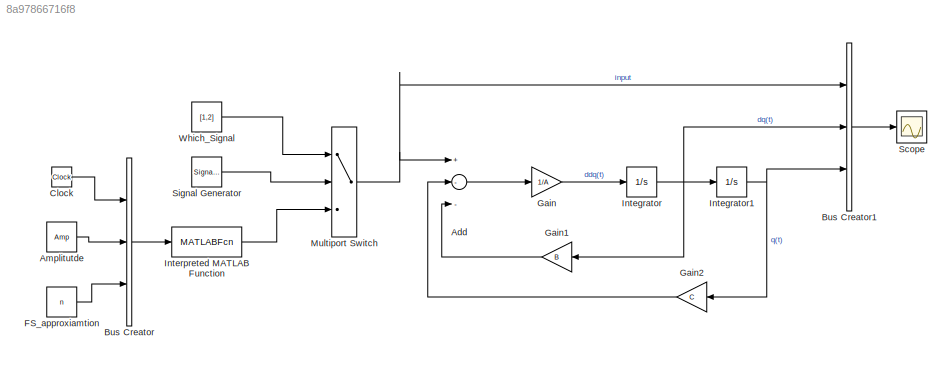
MODEL slx_8a97866716f8
KIND model
CONFIG AbsTol = auto
CONFIG EnableMultiTasking = off
CONFIG FixedStep = auto
CONFIG InitFcn = A=2;\n B=4;\n C=200;\nn=25; \nAmp=10
CONFIG MaxStep = auto
CONFIG MinStep = auto
CONFIG RelTol = 1e-3
CONFIG SampleTimeConstraint = Unconstrained
CONFIG Solver = VariableStepAuto
CONFIG SolverName = VariableStepAuto
CONFIG StartTime = 0.0
CONFIG StopTime = 10.0
BLOCK [Sum] Add
  InputSameDT = off
  Inputs = +--
  OutDataTypeStr = Inherit: Inherit via internal rule
  Ports = [3, 1]
  SaturateOnIntegerOverflow = off
BLOCK [Constant] Amplitutde
  Value = Amp
BLOCK [BusCreator] Bus Creator
  DisplayOption = bar
  InheritFromInputs = on
  Inputs = 3
  Ports = [3, 1]
BLOCK [BusCreator] Bus Creator1
  DisplayOption = bar
  InheritFromInputs = on
  Inputs = 3
  Ports = [3, 1]
BLOCK [Clock] Clock
BLOCK [Constant] FS_approxiamtion
  Value = n
BLOCK [Gain] Gain
  Gain = 1/A
  OutDataTypeStr = Inherit: Inherit via internal rule
  ParamDataTypeStr = Inherit: Inherit via internal rule
  SaturateOnIntegerOverflow = off
BLOCK [Gain] Gain1
  Gain = B
  OutDataTypeStr = Inherit: Inherit via internal rule
  ParamDataTypeStr = Inherit: Inherit via internal rule
  SaturateOnIntegerOverflow = off
BLOCK [Gain] Gain2
  Gain = C
  OutDataTypeStr = Inherit: Inherit via internal rule
  ParamDataTypeStr = Inherit: Inherit via internal rule
  SaturateOnIntegerOverflow = off
BLOCK [Integrator] Integrator
  Ports = [1, 1]
BLOCK [Integrator] Integrator1
  Ports = [1, 1]
BLOCK [MATLABFcn] Interpreted MATLAB Function
  MATLABFcn = function_pulse(u(1),u(2),u(3))
  Ports = [1, 1]
BLOCK [MultiPortSwitch] Multiport Switch
  InputSameDT = off
  Inputs = 2
  Ports = [3, 1]
  SaturateOnIntegerOverflow = off
BLOCK [Scope] Scope
  NumInputPorts = 1
  Ports = [1]
  ScopeSpecificationString = Simulink.scopes.TimeScopeBlockCfg('CurrentConfiguration', extmgr.ConfigurationSet(extmgr.Configuration('Core','General UI',true,'FigureColor',[1 1 1]),extmgr.Configuration('Core','Source UI',true),extmgr.Configuration('Sources','WiredSimulink',true),extmgr.Configuration('Visuals','Time Domain',true,'SerializedDisplays',{struct('MinYLimReal','-7.37083','MaxYLimReal','7.36509','YLabelReal','','MinYL...<+1758ch>
BLOCK [SignalGenerator] Signal Generator
  Amplitude = -Amp/2
  Frequency = 3.15
  Ports = [0, 1]
  Units = rad/sec
  WaveForm = square
BLOCK [Constant] Which_Signal
  Value = [1,2]
LINE Add:1 -> Gain:1
LINE Amplitutde:1 -> Bus Creator:2
LINE Bus Creator1:1 -> Scope:1
LINE Bus Creator:1 -> Interpreted MATLAB Function:1
LINE Clock:1 -> Bus Creator:1
LINE FS_approxiamtion:1 -> Bus Creator:3
LINE Gain1:1 -> Add:3
LINE Gain2:1 -> Add:2
LINE Gain:1 -> Integrator:1
NET Integrator1:1 -> Bus Creator1:3, Gain2:1
NET Integrator:1 -> Bus Creator1:2, Gain1:1, Integrator1:1
LINE Interpreted MATLAB Function:1 -> Multiport Switch:3
NET Multiport Switch:1 -> Add:1, Bus Creator1:1
LINE Signal Generator:1 -> Multiport Switch:2
LINE Which_Signal:1 -> Multiport Switch:1
note: NET lines group one-source signal fan-out (src -> all destinations, sorted); 1:1 wires keep LINE
